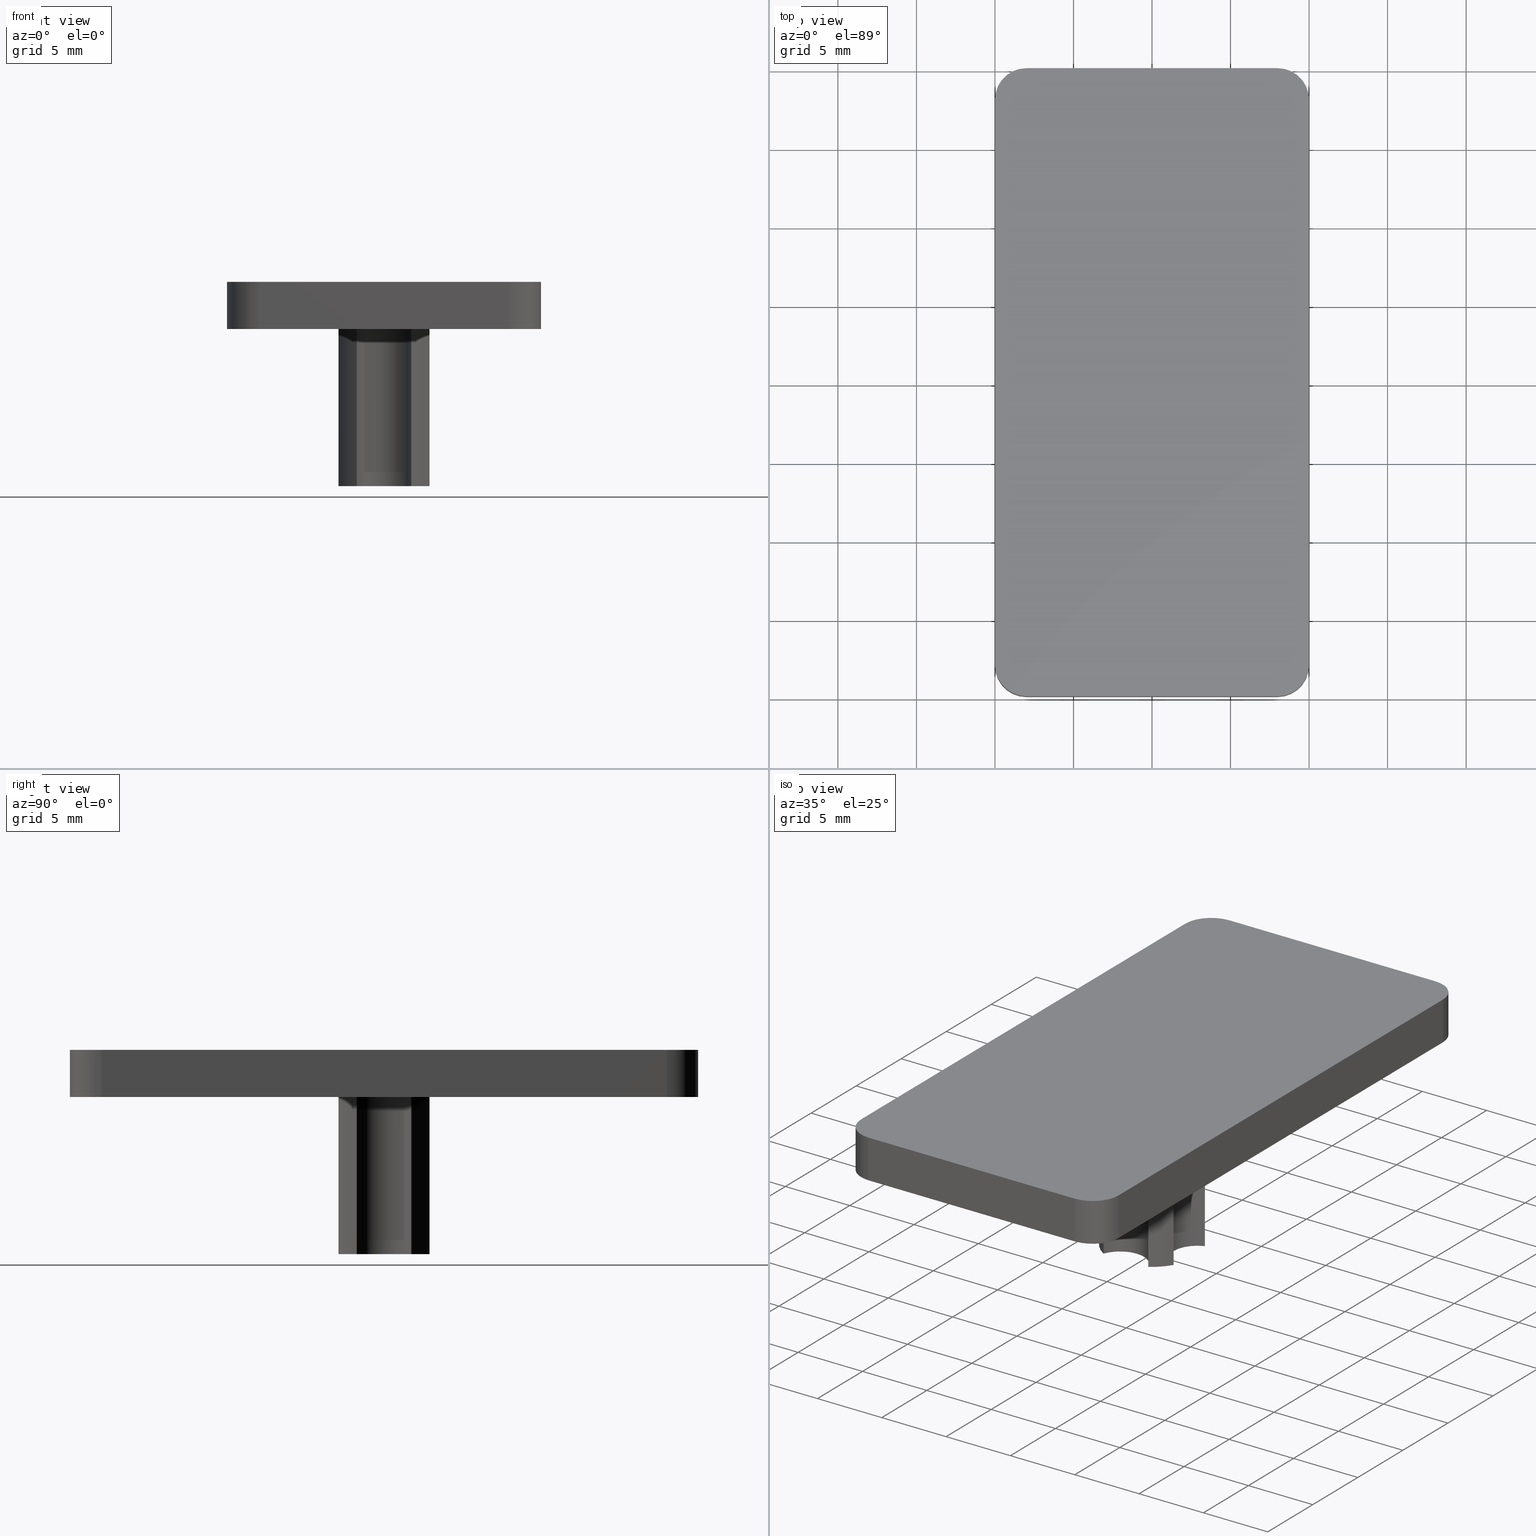
[diagram: canonical four-view strip — front | top / right | iso, engineering-drawing reading convention]
A machine part, canonical four-view strip (front | top / right | iso — engineering-drawing reading convention). The complete STEP part file that produces these views, byte-faithful:
ISO-10303-21;
HEADER;
/****************************************************************
 * Generated by software with PDE/Lib inside                    *
 * PDElib Version v4.4, created Mon 02/23/2004                  *
 * International Technegroup Inc. (www.iti-oh.com)              *
 ****************************************************************/
FILE_DESCRIPTION(('STEP AP203'),'2;1');
FILE_NAME('18.007.00.stp','2011-02-14T08:51:43',(''),(''),'2009.3.110','THINKDESIGN','');
FILE_SCHEMA(('CONFIG_CONTROL_DESIGN'));
ENDSEC;
DATA;
#2=CARTESIAN_POINT('',(6.462427046943312,3.552714E-015,-10.000000010000001));
#3=DIRECTION('',(-1.224647E-016,0.0,1.0));
#4=DIRECTION('',(-0.820773029339414,-0.571254439202884,-1.005157E-016));
#5=AXIS2_PLACEMENT_3D('',#2,#3,#4);
#6=CYLINDRICAL_SURFACE('',#5,1.850000000000001);
#7=CARTESIAN_POINT('',(8.312427046943311,3.552714E-015,-9.999999999999998));
#8=VERTEX_POINT('',#7);
#9=CARTESIAN_POINT('',(7.105000000000005,1.734819875376116,-10.0));
#10=VERTEX_POINT('',#9);
#11=CARTESIAN_POINT('',(6.462427046943309,3.552714E-015,-10.0));
#12=DIRECTION('',(-1.224647E-016,0.0,1.0));
#13=DIRECTION('',(0.0,1.0,0.0));
#14=AXIS2_PLACEMENT_3D('',#11,#12,#13);
#15=CIRCLE('',#14,1.850000000000001);
#16=EDGE_CURVE('',#8,#10,#15,.T.);
#17=ORIENTED_EDGE('',*,*,#16,.F.);
#18=CARTESIAN_POINT('',(8.312427046943309,3.552714E-015,1.017979E-015));
#19=VERTEX_POINT('',#18);
#20=CARTESIAN_POINT('',(8.312427046943311,3.552714E-015,-9.999999999999998));
#21=DIRECTION('',(0.0,0.0,1.0));
#22=VECTOR('',#21,10.0);
#23=LINE('',#20,#22);
#24=EDGE_CURVE('',#8,#19,#23,.T.);
#25=ORIENTED_EDGE('',*,*,#24,.T.);
#26=CARTESIAN_POINT('',(7.105000000000004,1.734819875376116,8.701116E-016));
#27=VERTEX_POINT('',#26);
#28=CARTESIAN_POINT('',(6.462427046943308,3.552714E-015,7.914191E-016));
#29=DIRECTION('',(-1.224647E-016,0.0,1.0));
#30=DIRECTION('',(0.0,1.0,0.0));
#31=AXIS2_PLACEMENT_3D('',#28,#29,#30);
#32=CIRCLE('',#31,1.850000000000001);
#33=EDGE_CURVE('',#19,#27,#32,.T.);
#34=ORIENTED_EDGE('',*,*,#33,.T.);
#35=CARTESIAN_POINT('',(7.105000000000005,1.734819875376116,-10.0));
#36=DIRECTION('',(0.0,0.0,1.0));
#37=VECTOR('',#36,10.0);
#38=LINE('',#35,#37);
#39=EDGE_CURVE('',#10,#27,#38,.T.);
#40=ORIENTED_EDGE('',*,*,#39,.F.);
#41=EDGE_LOOP('',(#17,#25,#34,#40));
#42=FACE_OUTER_BOUND('',#41,.T.);
#43=ADVANCED_FACE('',(#42),#6,.F.);
#44=CARTESIAN_POINT('',(17.999999999999993,-18.000000000000004,-9.999998E-009));
#45=DIRECTION('',(-1.224647E-016,0.0,1.0));
#46=DIRECTION('',(-0.707106781186547,0.707106781186548,-8.659561E-017));
#47=AXIS2_PLACEMENT_3D('',#44,#45,#46);
#48=CYLINDRICAL_SURFACE('',#47,2.000000000000001);
#49=CARTESIAN_POINT('',(19.999999999999986,-17.999999999999996,3.000000000000003));
#50=VERTEX_POINT('',#49);
#51=CARTESIAN_POINT('',(17.999999999999986,-19.999999999999996,3.000000000000002));
#52=VERTEX_POINT('',#51);
#53=CARTESIAN_POINT('',(17.999999999999986,-17.999999999999996,3.000000000000002));
#54=DIRECTION('',(1.224647E-016,0.0,-1.0));
#55=DIRECTION('',(-1.0,0.0,-1.224647E-016));
#56=AXIS2_PLACEMENT_3D('',#53,#54,#55);
#57=CIRCLE('',#56,2.000000000000001);
#58=EDGE_CURVE('',#50,#52,#57,.T.);
#59=ORIENTED_EDGE('',*,*,#58,.T.);
#60=CARTESIAN_POINT('',(17.999999999999986,-19.999999999999996,2.204364E-015));
#61=VERTEX_POINT('',#60);
#62=CARTESIAN_POINT('',(17.999999999999986,-19.999999999999996,2.204364E-015));
#63=DIRECTION('',(0.0,0.0,1.0));
#64=VECTOR('',#63,3.0);
#65=LINE('',#62,#64);
#66=EDGE_CURVE('',#61,#52,#65,.T.);
#67=ORIENTED_EDGE('',*,*,#66,.F.);
#68=CARTESIAN_POINT('',(19.999999999999986,-17.999999999999996,2.449294E-015));
#69=VERTEX_POINT('',#68);
#70=CARTESIAN_POINT('',(17.999999999999986,-17.999999999999996,2.204364E-015));
#71=DIRECTION('',(1.224647E-016,0.0,-1.0));
#72=DIRECTION('',(-1.0,0.0,-1.224647E-016));
#73=AXIS2_PLACEMENT_3D('',#70,#71,#72);
#74=CIRCLE('',#73,2.000000000000001);
#75=EDGE_CURVE('',#69,#61,#74,.T.);
#76=ORIENTED_EDGE('',*,*,#75,.F.);
#77=CARTESIAN_POINT('',(19.999999999999986,-17.999999999999996,2.449294E-015));
#78=DIRECTION('',(0.0,0.0,1.0));
#79=VECTOR('',#78,3.0);
#80=LINE('',#77,#79);
#81=EDGE_CURVE('',#69,#50,#80,.T.);
#82=ORIENTED_EDGE('',*,*,#81,.T.);
#83=EDGE_LOOP('',(#59,#67,#76,#82));
#84=FACE_OUTER_BOUND('',#83,.T.);
#85=ADVANCED_FACE('',(#84),#48,.T.);
#86=CARTESIAN_POINT('',(18.799999999999983,-19.999999999999996,3.150000000000002));
#87=DIRECTION('',(0.0,1.0,0.0));
#88=DIRECTION('',(0.0,0.0,-1.0));
#89=AXIS2_PLACEMENT_3D('',#86,#87,#88);
#90=PLANE('',#89);
#91=CARTESIAN_POINT('',(2.000000000000007,-19.999999999999996,3.000000000000000));
#92=VERTEX_POINT('',#91);
#93=CARTESIAN_POINT('',(17.999999999999986,-19.999999999999996,3.000000000000002));
#94=DIRECTION('',(-1.0,0.0,0.0));
#95=VECTOR('',#94,15.999999999999979);
#96=LINE('',#93,#95);
#97=EDGE_CURVE('',#52,#92,#96,.T.);
#98=ORIENTED_EDGE('',*,*,#97,.T.);
#99=CARTESIAN_POINT('',(2.000000000000007,-19.999999999999996,2.449294E-016));
#100=VERTEX_POINT('',#99);
#101=CARTESIAN_POINT('',(2.000000000000007,-19.999999999999996,2.449294E-016));
#102=DIRECTION('',(0.0,0.0,1.0));
#103=VECTOR('',#102,3.0);
#104=LINE('',#101,#103);
#105=EDGE_CURVE('',#100,#92,#104,.T.);
#106=ORIENTED_EDGE('',*,*,#105,.F.);
#107=CARTESIAN_POINT('',(17.999999999999986,-19.999999999999996,2.204364E-015));
#108=DIRECTION('',(-1.0,0.0,0.0));
#109=VECTOR('',#108,15.999999999999979);
#110=LINE('',#107,#109);
#111=EDGE_CURVE('',#61,#100,#110,.T.);
#112=ORIENTED_EDGE('',*,*,#111,.F.);
#113=ORIENTED_EDGE('',*,*,#66,.T.);
#114=EDGE_LOOP('',(#98,#106,#112,#113));
#115=FACE_OUTER_BOUND('',#114,.T.);
#116=ADVANCED_FACE('',(#115),#90,.F.);
#117=CARTESIAN_POINT('',(2.000000000000007,-17.999999999999996,-1.000000E-008));
#118=DIRECTION('',(-1.224647E-016,0.0,1.0));
#119=DIRECTION('',(1.0,0.0,1.224647E-016));
#120=AXIS2_PLACEMENT_3D('',#117,#118,#119);
#121=CYLINDRICAL_SURFACE('',#120,2.000000000000001);
#122=CARTESIAN_POINT('',(-3.673940E-016,-17.999999999999996,3.0));
#123=VERTEX_POINT('',#122);
#124=CARTESIAN_POINT('',(2.000000000000007,-17.999999999999996,3.000000000000000));
#125=DIRECTION('',(1.224647E-016,0.0,-1.0));
#126=DIRECTION('',(1.0,0.0,1.224647E-016));
#127=AXIS2_PLACEMENT_3D('',#124,#125,#126);
#128=CIRCLE('',#127,2.000000000000001);
#129=EDGE_CURVE('',#92,#123,#128,.T.);
#130=ORIENTED_EDGE('',*,*,#129,.T.);
#131=CARTESIAN_POINT('',(0.0,-17.999999999999996,0.0));
#132=VERTEX_POINT('',#131);
#133=CARTESIAN_POINT('',(0.0,-17.999999999999996,0.0));
#134=DIRECTION('',(0.0,0.0,1.0));
#135=VECTOR('',#134,3.0);
#136=LINE('',#133,#135);
#137=EDGE_CURVE('',#132,#123,#136,.T.);
#138=ORIENTED_EDGE('',*,*,#137,.F.);
#139=CARTESIAN_POINT('',(2.000000000000007,-17.999999999999996,2.449294E-016));
#140=DIRECTION('',(1.224647E-016,0.0,-1.0));
#141=DIRECTION('',(1.0,0.0,1.224647E-016));
#142=AXIS2_PLACEMENT_3D('',#139,#140,#141);
#143=CIRCLE('',#142,2.000000000000001);
#144=EDGE_CURVE('',#100,#132,#143,.T.);
#145=ORIENTED_EDGE('',*,*,#144,.F.);
#146=ORIENTED_EDGE('',*,*,#105,.T.);
#147=EDGE_LOOP('',(#130,#138,#145,#146));
#148=FACE_OUTER_BOUND('',#147,.T.);
#149=ADVANCED_FACE('',(#148),#121,.T.);
#150=CARTESIAN_POINT('',(-3.857637E-016,-19.799999999999997,3.150000000000000));
#151=DIRECTION('',(1.0,0.0,0.0));
#152=DIRECTION('',(0.0,0.0,-1.0));
#153=AXIS2_PLACEMENT_3D('',#150,#151,#152);
#154=PLANE('',#153);
#155=CARTESIAN_POINT('',(-3.673940E-016,17.999999999999993,3.0));
#156=VERTEX_POINT('',#155);
#157=CARTESIAN_POINT('',(-3.673940E-016,-17.999999999999996,3.0));
#158=DIRECTION('',(0.0,1.0,0.0));
#159=VECTOR('',#158,35.999999999999993);
#160=LINE('',#157,#159);
#161=EDGE_CURVE('',#123,#156,#160,.T.);
#162=ORIENTED_EDGE('',*,*,#161,.T.);
#163=CARTESIAN_POINT('',(0.0,17.999999999999993,0.0));
#164=VERTEX_POINT('',#163);
#165=CARTESIAN_POINT('',(0.0,17.999999999999993,0.0));
#166=DIRECTION('',(0.0,0.0,1.0));
#167=VECTOR('',#166,3.0);
#168=LINE('',#165,#167);
#169=EDGE_CURVE('',#164,#156,#168,.T.);
#170=ORIENTED_EDGE('',*,*,#169,.F.);
#171=CARTESIAN_POINT('',(0.0,-17.999999999999996,0.0));
#172=DIRECTION('',(0.0,1.0,0.0));
#173=VECTOR('',#172,35.999999999999993);
#174=LINE('',#171,#173);
#175=EDGE_CURVE('',#132,#164,#174,.T.);
#176=ORIENTED_EDGE('',*,*,#175,.F.);
#177=ORIENTED_EDGE('',*,*,#137,.T.);
#178=EDGE_LOOP('',(#162,#170,#176,#177));
#179=FACE_OUTER_BOUND('',#178,.T.);
#180=ADVANCED_FACE('',(#179),#154,.F.);
#181=CARTESIAN_POINT('',(2.000000000000007,17.999999999999993,-1.000000E-008));
#182=DIRECTION('',(-1.224647E-016,0.0,1.0));
#183=DIRECTION('',(1.0,0.0,1.224647E-016));
#184=AXIS2_PLACEMENT_3D('',#181,#182,#183);
#185=CYLINDRICAL_SURFACE('',#184,2.000000000000001);
#186=CARTESIAN_POINT('',(2.000000000000007,19.999999999999996,3.000000000000000));
#187=VERTEX_POINT('',#186);
#188=CARTESIAN_POINT('',(2.000000000000007,17.999999999999993,3.000000000000000));
#189=DIRECTION('',(1.224647E-016,0.0,-1.0));
#190=DIRECTION('',(1.0,0.0,1.224647E-016));
#191=AXIS2_PLACEMENT_3D('',#188,#189,#190);
#192=CIRCLE('',#191,2.000000000000001);
#193=EDGE_CURVE('',#156,#187,#192,.T.);
#194=ORIENTED_EDGE('',*,*,#193,.T.);
#195=CARTESIAN_POINT('',(2.000000000000007,19.999999999999996,2.449294E-016));
#196=VERTEX_POINT('',#195);
#197=CARTESIAN_POINT('',(2.000000000000007,19.999999999999996,2.449294E-016));
#198=DIRECTION('',(0.0,0.0,1.0));
#199=VECTOR('',#198,3.0);
#200=LINE('',#197,#199);
#201=EDGE_CURVE('',#196,#187,#200,.T.);
#202=ORIENTED_EDGE('',*,*,#201,.F.);
#203=CARTESIAN_POINT('',(2.000000000000007,17.999999999999993,2.449294E-016));
#204=DIRECTION('',(1.224647E-016,0.0,-1.0));
#205=DIRECTION('',(1.0,0.0,1.224647E-016));
#206=AXIS2_PLACEMENT_3D('',#203,#204,#205);
#207=CIRCLE('',#206,2.000000000000001);
#208=EDGE_CURVE('',#164,#196,#207,.T.);
#209=ORIENTED_EDGE('',*,*,#208,.F.);
#210=ORIENTED_EDGE('',*,*,#169,.T.);
#211=EDGE_LOOP('',(#194,#202,#209,#210));
#212=FACE_OUTER_BOUND('',#211,.T.);
#213=ADVANCED_FACE('',(#212),#185,.T.);
#214=CARTESIAN_POINT('',(18.800000000000004,19.999999999999996,-0.149999999999998));
#215=DIRECTION('',(0.0,-1.0,0.0));
#216=DIRECTION('',(0.0,0.0,1.0));
#217=AXIS2_PLACEMENT_3D('',#214,#215,#216);
#218=PLANE('',#217);
#219=CARTESIAN_POINT('',(18.000000000000007,19.999999999999996,3.000000000000002));
#220=VERTEX_POINT('',#219);
#221=CARTESIAN_POINT('',(2.000000000000007,19.999999999999996,3.000000000000000));
#222=DIRECTION('',(1.0,0.0,0.0));
#223=VECTOR('',#222,16.0);
#224=LINE('',#221,#223);
#225=EDGE_CURVE('',#187,#220,#224,.T.);
#226=ORIENTED_EDGE('',*,*,#225,.T.);
#227=CARTESIAN_POINT('',(18.000000000000007,19.999999999999996,2.204364E-015));
#228=VERTEX_POINT('',#227);
#229=CARTESIAN_POINT('',(18.000000000000007,19.999999999999996,2.204364E-015));
#230=DIRECTION('',(0.0,0.0,1.0));
#231=VECTOR('',#230,3.0);
#232=LINE('',#229,#231);
#233=EDGE_CURVE('',#228,#220,#232,.T.);
#234=ORIENTED_EDGE('',*,*,#233,.F.);
#235=CARTESIAN_POINT('',(2.000000000000007,19.999999999999996,2.449294E-016));
#236=DIRECTION('',(1.0,0.0,0.0));
#237=VECTOR('',#236,16.0);
#238=LINE('',#235,#237);
#239=EDGE_CURVE('',#196,#228,#238,.T.);
#240=ORIENTED_EDGE('',*,*,#239,.F.);
#241=ORIENTED_EDGE('',*,*,#201,.T.);
#242=EDGE_LOOP('',(#226,#234,#240,#241));
#243=FACE_OUTER_BOUND('',#242,.T.);
#244=ADVANCED_FACE('',(#243),#218,.F.);
#245=CARTESIAN_POINT('',(18.000000000000007,17.999999999999996,-9.999998E-009));
#246=DIRECTION('',(-1.224647E-016,0.0,1.0));
#247=DIRECTION('',(-0.707106781186547,-0.707106781186548,-8.659561E-017));
#248=AXIS2_PLACEMENT_3D('',#245,#246,#247);
#249=CYLINDRICAL_SURFACE('',#248,2.000000000000001);
#250=CARTESIAN_POINT('',(20.000000000000007,17.999999999999993,3.000000000000003));
#251=VERTEX_POINT('',#250);
#252=CARTESIAN_POINT('',(18.000000000000007,17.999999999999993,3.000000000000002));
#253=DIRECTION('',(1.224647E-016,0.0,-1.0));
#254=DIRECTION('',(-1.0,0.0,-1.224647E-016));
#255=AXIS2_PLACEMENT_3D('',#252,#253,#254);
#256=CIRCLE('',#255,2.000000000000001);
#257=EDGE_CURVE('',#220,#251,#256,.T.);
#258=ORIENTED_EDGE('',*,*,#257,.T.);
#259=CARTESIAN_POINT('',(20.000000000000007,17.999999999999993,2.449294E-015));
#260=VERTEX_POINT('',#259);
#261=CARTESIAN_POINT('',(20.000000000000007,17.999999999999993,2.449294E-015));
#262=DIRECTION('',(0.0,0.0,1.0));
#263=VECTOR('',#262,3.0);
#264=LINE('',#261,#263);
#265=EDGE_CURVE('',#260,#251,#264,.T.);
#266=ORIENTED_EDGE('',*,*,#265,.F.);
#267=CARTESIAN_POINT('',(18.000000000000007,17.999999999999993,2.204364E-015));
#268=DIRECTION('',(1.224647E-016,0.0,-1.0));
#269=DIRECTION('',(-1.0,0.0,-1.224647E-016));
#270=AXIS2_PLACEMENT_3D('',#267,#268,#269);
#271=CIRCLE('',#270,2.000000000000001);
#272=EDGE_CURVE('',#228,#260,#271,.T.);
#273=ORIENTED_EDGE('',*,*,#272,.F.);
#274=ORIENTED_EDGE('',*,*,#233,.T.);
#275=EDGE_LOOP('',(#258,#266,#273,#274));
#276=FACE_OUTER_BOUND('',#275,.T.);
#277=ADVANCED_FACE('',(#276),#249,.T.);
#278=CARTESIAN_POINT('',(20.000000000000007,-19.799999999999994,3.150000000000003));
#279=DIRECTION('',(-1.0,0.0,0.0));
#280=DIRECTION('',(0.0,1.0,0.0));
#281=AXIS2_PLACEMENT_3D('',#278,#279,#280);
#282=PLANE('',#281);
#283=CARTESIAN_POINT('',(20.000000000000007,17.999999999999993,3.000000000000003));
#284=DIRECTION('',(0.0,-1.0,0.0));
#285=VECTOR('',#284,35.999999999999993);
#286=LINE('',#283,#285);
#287=EDGE_CURVE('',#251,#50,#286,.T.);
#288=ORIENTED_EDGE('',*,*,#287,.T.);
#289=ORIENTED_EDGE('',*,*,#81,.F.);
#290=CARTESIAN_POINT('',(20.000000000000007,17.999999999999993,2.449294E-015));
#291=DIRECTION('',(0.0,-1.0,0.0));
#292=VECTOR('',#291,35.999999999999993);
#293=LINE('',#290,#292);
#294=EDGE_CURVE('',#260,#69,#293,.T.);
#295=ORIENTED_EDGE('',*,*,#294,.F.);
#296=ORIENTED_EDGE('',*,*,#265,.T.);
#297=EDGE_LOOP('',(#288,#289,#295,#296));
#298=FACE_OUTER_BOUND('',#297,.T.);
#299=ADVANCED_FACE('',(#298),#282,.F.);
#300=CARTESIAN_POINT('',(21.000000000000007,-21.999999999999996,2.571758E-015));
#301=DIRECTION('',(0.0,0.0,-1.0));
#302=DIRECTION('',(-1.0,0.0,0.0));
#303=AXIS2_PLACEMENT_3D('',#300,#301,#302);
#304=PLANE('',#303);
#305=ORIENTED_EDGE('',*,*,#75,.T.);
#306=ORIENTED_EDGE('',*,*,#111,.T.);
#307=ORIENTED_EDGE('',*,*,#144,.T.);
#308=ORIENTED_EDGE('',*,*,#175,.T.);
#309=ORIENTED_EDGE('',*,*,#208,.T.);
#310=ORIENTED_EDGE('',*,*,#239,.T.);
#311=ORIENTED_EDGE('',*,*,#272,.T.);
#312=ORIENTED_EDGE('',*,*,#294,.T.);
#313=EDGE_LOOP('',(#305,#306,#307,#308,#309,#310,#311,#312));
#314=FACE_OUTER_BOUND('',#313,.T.);
#315=CARTESIAN_POINT('',(8.265180124623885,2.895000000000005,1.012193E-015));
#316=VERTEX_POINT('',#315);
#317=CARTESIAN_POINT('',(10.000000000000004,3.552714E-015,1.224647E-015));
#318=DIRECTION('',(1.224647E-016,0.0,-1.0));
#319=DIRECTION('',(0.0,1.0,0.0));
#320=AXIS2_PLACEMENT_3D('',#317,#318,#319);
#321=CIRCLE('',#320,3.374999999999998);
#322=EDGE_CURVE('',#27,#316,#321,.T.);
#323=ORIENTED_EDGE('',*,*,#322,.F.);
#324=ORIENTED_EDGE('',*,*,#33,.F.);
#325=CARTESIAN_POINT('',(7.105000000000004,-1.734819875376115,8.701116E-016));
#326=VERTEX_POINT('',#325);
#327=CARTESIAN_POINT('',(6.462427046943308,3.552714E-015,7.914191E-016));
#328=DIRECTION('',(-1.224647E-016,0.0,1.0));
#329=DIRECTION('',(0.0,1.0,0.0));
#330=AXIS2_PLACEMENT_3D('',#327,#328,#329);
#331=CIRCLE('',#330,1.850000000000001);
#332=EDGE_CURVE('',#326,#19,#331,.T.);
#333=ORIENTED_EDGE('',*,*,#332,.F.);
#334=CARTESIAN_POINT('',(8.265180124623885,-2.894999999999994,1.012193E-015));
#335=VERTEX_POINT('',#334);
#336=CARTESIAN_POINT('',(10.000000000000004,3.552714E-015,1.224647E-015));
#337=DIRECTION('',(1.224647E-016,0.0,-1.0));
#338=DIRECTION('',(0.0,1.0,0.0));
#339=AXIS2_PLACEMENT_3D('',#336,#337,#338);
#340=CIRCLE('',#339,3.374999999999999);
#341=EDGE_CURVE('',#335,#326,#340,.T.);
#342=ORIENTED_EDGE('',*,*,#341,.F.);
#343=CARTESIAN_POINT('',(11.734819875376118,-2.895000000000000,1.437101E-015));
#344=VERTEX_POINT('',#343);
#345=CARTESIAN_POINT('',(10.000000000000004,-3.537572953056708,1.224647E-015));
#346=DIRECTION('',(-1.224647E-016,0.0,1.0));
#347=DIRECTION('',(0.0,-1.0,0.0));
#348=AXIS2_PLACEMENT_3D('',#345,#346,#347);
#349=CIRCLE('',#348,1.850000000000004);
#350=EDGE_CURVE('',#344,#335,#349,.T.);
#351=ORIENTED_EDGE('',*,*,#350,.F.);
#352=CARTESIAN_POINT('',(12.895000009413444,-1.734819859667306,1.579182E-015));
#353=VERTEX_POINT('',#352);
#354=CARTESIAN_POINT('',(10.000000000000004,3.552714E-015,1.224647E-015));
#355=DIRECTION('',(1.224647E-016,0.0,-1.0));
#356=DIRECTION('',(0.0,1.0,0.0));
#357=AXIS2_PLACEMENT_3D('',#354,#355,#356);
#358=CIRCLE('',#357,3.375000000000001);
#359=EDGE_CURVE('',#353,#344,#358,.T.);
#360=ORIENTED_EDGE('',*,*,#359,.F.);
#361=CARTESIAN_POINT('',(12.895000009413444,1.734819859667312,1.579182E-015));
#362=VERTEX_POINT('',#361);
#363=CARTESIAN_POINT('',(13.537573004880823,3.552714E-015,1.657875E-015));
#364=DIRECTION('',(-1.224647E-016,0.0,1.0));
#365=DIRECTION('',(0.0,1.0,0.0));
#366=AXIS2_PLACEMENT_3D('',#363,#364,#365);
#367=CIRCLE('',#366,1.850000000000003);
#368=EDGE_CURVE('',#362,#353,#367,.T.);
#369=ORIENTED_EDGE('',*,*,#368,.F.);
#370=CARTESIAN_POINT('',(11.734819875376118,2.895000000000001,1.437101E-015));
#371=VERTEX_POINT('',#370);
#372=CARTESIAN_POINT('',(10.000000000000004,3.552714E-015,1.224647E-015));
#373=DIRECTION('',(1.224647E-016,0.0,-1.0));
#374=DIRECTION('',(0.0,1.0,0.0));
#375=AXIS2_PLACEMENT_3D('',#372,#373,#374);
#376=CIRCLE('',#375,3.374999999999999);
#377=EDGE_CURVE('',#371,#362,#376,.T.);
#378=ORIENTED_EDGE('',*,*,#377,.F.);
#379=CARTESIAN_POINT('',(10.000000000000004,3.537572953056701,1.224647E-015));
#380=DIRECTION('',(-1.224647E-016,0.0,1.0));
#381=DIRECTION('',(0.0,1.0,0.0));
#382=AXIS2_PLACEMENT_3D('',#379,#380,#381);
#383=CIRCLE('',#382,1.850000000000000);
#384=EDGE_CURVE('',#316,#371,#383,.T.);
#385=ORIENTED_EDGE('',*,*,#384,.F.);
#386=EDGE_LOOP('',(#323,#324,#333,#342,#351,#360,#369,#378,#385));
#387=FACE_BOUND('',#386,.T.);
#388=ADVANCED_FACE('',(#314,#387),#304,.T.);
#389=CARTESIAN_POINT('',(21.000000000000007,-21.999999999999996,3.000000000000003));
#390=DIRECTION('',(0.0,0.0,-1.0));
#391=DIRECTION('',(-1.0,0.0,0.0));
#392=AXIS2_PLACEMENT_3D('',#389,#390,#391);
#393=PLANE('',#392);
#394=ORIENTED_EDGE('',*,*,#58,.F.);
#395=ORIENTED_EDGE('',*,*,#287,.F.);
#396=ORIENTED_EDGE('',*,*,#257,.F.);
#397=ORIENTED_EDGE('',*,*,#225,.F.);
#398=ORIENTED_EDGE('',*,*,#193,.F.);
#399=ORIENTED_EDGE('',*,*,#161,.F.);
#400=ORIENTED_EDGE('',*,*,#129,.F.);
#401=ORIENTED_EDGE('',*,*,#97,.F.);
#402=EDGE_LOOP('',(#394,#395,#396,#397,#398,#399,#400,#401));
#403=FACE_OUTER_BOUND('',#402,.T.);
#404=ADVANCED_FACE('',(#403),#393,.F.);
#405=CARTESIAN_POINT('',(10.000000000000005,3.552714E-015,-10.000000009999997));
#406=DIRECTION('',(-1.224647E-016,0.0,1.0));
#407=DIRECTION('',(1.0,0.0,1.224647E-016));
#408=AXIS2_PLACEMENT_3D('',#405,#406,#407);
#409=CYLINDRICAL_SURFACE('',#408,3.375000000000000);
#410=ORIENTED_EDGE('',*,*,#322,.T.);
#411=CARTESIAN_POINT('',(8.265180124623887,2.895000000000005,-9.999999999999998));
#412=VERTEX_POINT('',#411);
#413=CARTESIAN_POINT('',(8.265180124623887,2.895000000000005,-9.999999999999998));
#414=DIRECTION('',(0.0,0.0,1.0));
#415=VECTOR('',#414,10.0);
#416=LINE('',#413,#415);
#417=EDGE_CURVE('',#412,#316,#416,.T.);
#418=ORIENTED_EDGE('',*,*,#417,.F.);
#419=CARTESIAN_POINT('',(10.000000000000005,3.552714E-015,-9.999999999999998));
#420=DIRECTION('',(1.224647E-016,0.0,-1.0));
#421=DIRECTION('',(0.0,1.0,0.0));
#422=AXIS2_PLACEMENT_3D('',#419,#420,#421);
#423=CIRCLE('',#422,3.374999999999998);
#424=EDGE_CURVE('',#10,#412,#423,.T.);
#425=ORIENTED_EDGE('',*,*,#424,.F.);
#426=ORIENTED_EDGE('',*,*,#39,.T.);
#427=EDGE_LOOP('',(#410,#418,#425,#426));
#428=FACE_OUTER_BOUND('',#427,.T.);
#429=ADVANCED_FACE('',(#428),#409,.T.);
#430=CARTESIAN_POINT('',(10.000000000000005,3.537572953056701,-10.000000009999997));
#431=DIRECTION('',(-1.224647E-016,0.0,1.0));
#432=DIRECTION('',(1.0,0.0,1.224647E-016));
#433=AXIS2_PLACEMENT_3D('',#430,#431,#432);
#434=CYLINDRICAL_SURFACE('',#433,1.850000000000001);
#435=ORIENTED_EDGE('',*,*,#384,.T.);
#436=CARTESIAN_POINT('',(11.734819875376120,2.895000000000001,-9.999999999999998));
#437=VERTEX_POINT('',#436);
#438=CARTESIAN_POINT('',(11.734819875376120,2.895000000000001,-9.999999999999998));
#439=DIRECTION('',(0.0,0.0,1.0));
#440=VECTOR('',#439,10.0);
#441=LINE('',#438,#440);
#442=EDGE_CURVE('',#437,#371,#441,.T.);
#443=ORIENTED_EDGE('',*,*,#442,.F.);
#444=CARTESIAN_POINT('',(10.000000000000005,3.537572953056701,-9.999999999999998));
#445=DIRECTION('',(-1.224647E-016,0.0,1.0));
#446=DIRECTION('',(0.0,1.0,0.0));
#447=AXIS2_PLACEMENT_3D('',#444,#445,#446);
#448=CIRCLE('',#447,1.850000000000000);
#449=EDGE_CURVE('',#412,#437,#448,.T.);
#450=ORIENTED_EDGE('',*,*,#449,.F.);
#451=ORIENTED_EDGE('',*,*,#417,.T.);
#452=EDGE_LOOP('',(#435,#443,#450,#451));
#453=FACE_OUTER_BOUND('',#452,.T.);
#454=ADVANCED_FACE('',(#453),#434,.F.);
#455=CARTESIAN_POINT('',(10.000000000000005,3.552714E-015,-10.000000009999997));
#456=DIRECTION('',(-1.224647E-016,0.0,1.0));
#457=DIRECTION('',(1.0,0.0,1.224647E-016));
#458=AXIS2_PLACEMENT_3D('',#455,#456,#457);
#459=CYLINDRICAL_SURFACE('',#458,3.375000000000000);
#460=ORIENTED_EDGE('',*,*,#377,.T.);
#461=CARTESIAN_POINT('',(12.895000009413446,1.734819859667312,-9.999999999999998));
#462=VERTEX_POINT('',#461);
#463=CARTESIAN_POINT('',(12.895000009413446,1.734819859667312,-9.999999999999998));
#464=DIRECTION('',(0.0,0.0,1.0));
#465=VECTOR('',#464,10.0);
#466=LINE('',#463,#465);
#467=EDGE_CURVE('',#462,#362,#466,.T.);
#468=ORIENTED_EDGE('',*,*,#467,.F.);
#469=CARTESIAN_POINT('',(10.000000000000005,3.552714E-015,-9.999999999999998));
#470=DIRECTION('',(1.224647E-016,0.0,-1.0));
#471=DIRECTION('',(0.0,1.0,0.0));
#472=AXIS2_PLACEMENT_3D('',#469,#470,#471);
#473=CIRCLE('',#472,3.374999999999999);
#474=EDGE_CURVE('',#437,#462,#473,.T.);
#475=ORIENTED_EDGE('',*,*,#474,.F.);
#476=ORIENTED_EDGE('',*,*,#442,.T.);
#477=EDGE_LOOP('',(#460,#468,#475,#476));
#478=FACE_OUTER_BOUND('',#477,.T.);
#479=ADVANCED_FACE('',(#478),#459,.T.);
#480=CARTESIAN_POINT('',(13.537573004880825,3.552714E-015,-10.000000009999997));
#481=DIRECTION('',(-1.224647E-016,0.0,1.0));
#482=DIRECTION('',(1.0,0.0,1.224647E-016));
#483=AXIS2_PLACEMENT_3D('',#480,#481,#482);
#484=CYLINDRICAL_SURFACE('',#483,1.850000000000004);
#485=ORIENTED_EDGE('',*,*,#368,.T.);
#486=CARTESIAN_POINT('',(12.895000009413446,-1.734819859667306,-9.999999999999998));
#487=VERTEX_POINT('',#486);
#488=CARTESIAN_POINT('',(12.895000009413446,-1.734819859667306,-9.999999999999998));
#489=DIRECTION('',(0.0,0.0,1.0));
#490=VECTOR('',#489,10.0);
#491=LINE('',#488,#490);
#492=EDGE_CURVE('',#487,#353,#491,.T.);
#493=ORIENTED_EDGE('',*,*,#492,.F.);
#494=CARTESIAN_POINT('',(13.537573004880825,3.552714E-015,-9.999999999999998));
#495=DIRECTION('',(-1.224647E-016,0.0,1.0));
#496=DIRECTION('',(0.0,1.0,0.0));
#497=AXIS2_PLACEMENT_3D('',#494,#495,#496);
#498=CIRCLE('',#497,1.850000000000003);
#499=EDGE_CURVE('',#462,#487,#498,.T.);
#500=ORIENTED_EDGE('',*,*,#499,.F.);
#501=ORIENTED_EDGE('',*,*,#467,.T.);
#502=EDGE_LOOP('',(#485,#493,#500,#501));
#503=FACE_OUTER_BOUND('',#502,.T.);
#504=ADVANCED_FACE('',(#503),#484,.F.);
#505=CARTESIAN_POINT('',(10.000000000000005,3.552714E-015,-10.000000009999997));
#506=DIRECTION('',(-1.224647E-016,0.0,1.0));
#507=DIRECTION('',(1.0,0.0,1.224647E-016));
#508=AXIS2_PLACEMENT_3D('',#505,#506,#507);
#509=CYLINDRICAL_SURFACE('',#508,3.375000000000000);
#510=ORIENTED_EDGE('',*,*,#359,.T.);
#511=CARTESIAN_POINT('',(11.734819875376120,-2.895000000000000,-9.999999999999998));
#512=VERTEX_POINT('',#511);
#513=CARTESIAN_POINT('',(11.734819875376120,-2.895000000000000,-9.999999999999998));
#514=DIRECTION('',(0.0,0.0,1.0));
#515=VECTOR('',#514,10.0);
#516=LINE('',#513,#515);
#517=EDGE_CURVE('',#512,#344,#516,.T.);
#518=ORIENTED_EDGE('',*,*,#517,.F.);
#519=CARTESIAN_POINT('',(10.000000000000005,3.552714E-015,-9.999999999999998));
#520=DIRECTION('',(1.224647E-016,0.0,-1.0));
#521=DIRECTION('',(0.0,1.0,0.0));
#522=AXIS2_PLACEMENT_3D('',#519,#520,#521);
#523=CIRCLE('',#522,3.375000000000001);
#524=EDGE_CURVE('',#487,#512,#523,.T.);
#525=ORIENTED_EDGE('',*,*,#524,.F.);
#526=ORIENTED_EDGE('',*,*,#492,.T.);
#527=EDGE_LOOP('',(#510,#518,#525,#526));
#528=FACE_OUTER_BOUND('',#527,.T.);
#529=ADVANCED_FACE('',(#528),#509,.T.);
#530=CARTESIAN_POINT('',(10.000000000000005,-3.537572953056708,-10.000000009999997));
#531=DIRECTION('',(-1.224647E-016,0.0,1.0));
#532=DIRECTION('',(1.0,0.0,1.224647E-016));
#533=AXIS2_PLACEMENT_3D('',#530,#531,#532);
#534=CYLINDRICAL_SURFACE('',#533,1.850000000000004);
#535=ORIENTED_EDGE('',*,*,#350,.T.);
#536=CARTESIAN_POINT('',(8.265180124623887,-2.894999999999994,-9.999999999999998));
#537=VERTEX_POINT('',#536);
#538=CARTESIAN_POINT('',(8.265180124623887,-2.894999999999994,-9.999999999999998));
#539=DIRECTION('',(0.0,0.0,1.0));
#540=VECTOR('',#539,10.0);
#541=LINE('',#538,#540);
#542=EDGE_CURVE('',#537,#335,#541,.T.);
#543=ORIENTED_EDGE('',*,*,#542,.F.);
#544=CARTESIAN_POINT('',(10.000000000000005,-3.537572953056708,-9.999999999999998));
#545=DIRECTION('',(-1.224647E-016,0.0,1.0));
#546=DIRECTION('',(0.0,-1.0,0.0));
#547=AXIS2_PLACEMENT_3D('',#544,#545,#546);
#548=CIRCLE('',#547,1.850000000000004);
#549=EDGE_CURVE('',#512,#537,#548,.T.);
#550=ORIENTED_EDGE('',*,*,#549,.F.);
#551=ORIENTED_EDGE('',*,*,#517,.T.);
#552=EDGE_LOOP('',(#535,#543,#550,#551));
#553=FACE_OUTER_BOUND('',#552,.T.);
#554=ADVANCED_FACE('',(#553),#534,.F.);
#555=CARTESIAN_POINT('',(10.000000000000005,3.552714E-015,-10.000000009999997));
#556=DIRECTION('',(-1.224647E-016,0.0,1.0));
#557=DIRECTION('',(1.0,0.0,1.224647E-016));
#558=AXIS2_PLACEMENT_3D('',#555,#556,#557);
#559=CYLINDRICAL_SURFACE('',#558,3.375000000000000);
#560=ORIENTED_EDGE('',*,*,#341,.T.);
#561=CARTESIAN_POINT('',(7.105000000000005,-1.734819875376115,-10.0));
#562=VERTEX_POINT('',#561);
#563=CARTESIAN_POINT('',(7.105000000000005,-1.734819875376115,-10.0));
#564=DIRECTION('',(0.0,0.0,1.0));
#565=VECTOR('',#564,10.0);
#566=LINE('',#563,#565);
#567=EDGE_CURVE('',#562,#326,#566,.T.);
#568=ORIENTED_EDGE('',*,*,#567,.F.);
#569=CARTESIAN_POINT('',(10.000000000000005,3.552714E-015,-9.999999999999998));
#570=DIRECTION('',(1.224647E-016,0.0,-1.0));
#571=DIRECTION('',(0.0,1.0,0.0));
#572=AXIS2_PLACEMENT_3D('',#569,#570,#571);
#573=CIRCLE('',#572,3.374999999999999);
#574=EDGE_CURVE('',#537,#562,#573,.T.);
#575=ORIENTED_EDGE('',*,*,#574,.F.);
#576=ORIENTED_EDGE('',*,*,#542,.T.);
#577=EDGE_LOOP('',(#560,#568,#575,#576));
#578=FACE_OUTER_BOUND('',#577,.T.);
#579=ADVANCED_FACE('',(#578),#559,.T.);
#580=CARTESIAN_POINT('',(6.462427046943305,3.552714E-015,-10.000000010000001));
#581=DIRECTION('',(-1.224647E-016,0.0,1.0));
#582=DIRECTION('',(-0.820773029339414,0.571254439202884,-1.005157E-016));
#583=AXIS2_PLACEMENT_3D('',#580,#581,#582);
#584=CYLINDRICAL_SURFACE('',#583,1.850000000000001);
#585=ORIENTED_EDGE('',*,*,#24,.F.);
#586=CARTESIAN_POINT('',(6.462427046943309,3.552714E-015,-10.0));
#587=DIRECTION('',(-1.224647E-016,0.0,1.0));
#588=DIRECTION('',(0.0,1.0,0.0));
#589=AXIS2_PLACEMENT_3D('',#586,#587,#588);
#590=CIRCLE('',#589,1.850000000000001);
#591=EDGE_CURVE('',#562,#8,#590,.T.);
#592=ORIENTED_EDGE('',*,*,#591,.F.);
#593=ORIENTED_EDGE('',*,*,#567,.T.);
#594=ORIENTED_EDGE('',*,*,#332,.T.);
#595=EDGE_LOOP('',(#585,#592,#593,#594));
#596=FACE_OUTER_BOUND('',#595,.T.);
#597=ADVANCED_FACE('',(#596),#584,.F.);
#598=CARTESIAN_POINT('',(13.184500009884127,-3.184500000000000,-9.999999999999998));
#599=DIRECTION('',(0.0,0.0,-1.0));
#600=DIRECTION('',(-1.0,0.0,0.0));
#601=AXIS2_PLACEMENT_3D('',#598,#599,#600);
#602=PLANE('',#601);
#603=ORIENTED_EDGE('',*,*,#424,.T.);
#604=ORIENTED_EDGE('',*,*,#449,.T.);
#605=ORIENTED_EDGE('',*,*,#474,.T.);
#606=ORIENTED_EDGE('',*,*,#499,.T.);
#607=ORIENTED_EDGE('',*,*,#524,.T.);
#608=ORIENTED_EDGE('',*,*,#549,.T.);
#609=ORIENTED_EDGE('',*,*,#574,.T.);
#610=ORIENTED_EDGE('',*,*,#591,.T.);
#611=ORIENTED_EDGE('',*,*,#16,.T.);
#612=EDGE_LOOP('',(#603,#604,#605,#606,#607,#608,#609,#610,#611));
#613=FACE_OUTER_BOUND('',#612,.T.);
#614=ADVANCED_FACE('',(#613),#602,.T.);
#615=CLOSED_SHELL('',(#43,#85,#116,#149,#180,#213,#244,#277,#299,#388,#404,#429,#454,#479,#504,#529,#554,#579,#597,#614));
#616=MANIFOLD_SOLID_BREP('Importato1',#615);
#622=(NAMED_UNIT(*)PLANE_ANGLE_UNIT()SI_UNIT($,.RADIAN.));
#623=DIMENSIONAL_EXPONENTS(0.0,0.0,0.0,0.0,0.0,0.0,0.0);
#624=PLANE_ANGLE_MEASURE_WITH_UNIT(PLANE_ANGLE_MEASURE(0.017453292500000),#622);
#628=(CONVERSION_BASED_UNIT('DEGREE',#624)NAMED_UNIT(#623)PLANE_ANGLE_UNIT());
#632=(NAMED_UNIT(*)SI_UNIT($,.STERADIAN.)SOLID_ANGLE_UNIT());
#636=(LENGTH_UNIT()NAMED_UNIT(*)SI_UNIT(.MILLI.,.METRE.));
#638=UNCERTAINTY_MEASURE_WITH_UNIT(LENGTH_MEASURE(0.001000000000000),#636,'DISTANCE_ACCURACY_VALUE','');
#640=(GEOMETRIC_REPRESENTATION_CONTEXT(3)GLOBAL_UNCERTAINTY_ASSIGNED_CONTEXT((#638))GLOBAL_UNIT_ASSIGNED_CONTEXT((#628,#632,#636))REPRESENTATION_CONTEXT('thinkdesign','2009.3.110'));
#641=ADVANCED_BREP_SHAPE_REPRESENTATION('',(#616),#640);
#642=APPLICATION_CONTEXT('configuration controlled 3D designs of mechanical parts and assemblies');
#643=APPLICATION_PROTOCOL_DEFINITION('International Standard','config_control_design',1995,#642);
#644=MECHANICAL_CONTEXT('None',#642,'mechanical');
#645=PRODUCT('None','None','None',(#644));
#646=PRODUCT_RELATED_PRODUCT_CATEGORY('detail',$,(#645));
#647=PRODUCT_CATEGORY('part',$);
#648=PRODUCT_CATEGORY_RELATIONSHIP('None','None',#647,#646);
#649=PERSON('PERSON1','None','None',$,$,$);
#650=ORGANIZATION('','None','None');
#651=PERSON_AND_ORGANIZATION(#649,#650);
#652=PERSON_AND_ORGANIZATION_ROLE('design_owner');
#653=CC_DESIGN_PERSON_AND_ORGANIZATION_ASSIGNMENT(#651,#652,(#645));
#654=PRODUCT_DEFINITION_FORMATION_WITH_SPECIFIED_SOURCE('None','None',#645,.NOT_KNOWN.);
#655=PERSON('PERSON2','None','None',$,$,$);
#656=ORGANIZATION('','None','None');
#657=PERSON_AND_ORGANIZATION(#655,#656);
#658=PERSON_AND_ORGANIZATION_ROLE('creator');
#659=CC_DESIGN_PERSON_AND_ORGANIZATION_ASSIGNMENT(#657,#658,(#654));
#660=PERSON('PERSON3','None','None',$,$,$);
#661=ORGANIZATION('','None','None');
#662=PERSON_AND_ORGANIZATION(#660,#661);
#663=PERSON_AND_ORGANIZATION_ROLE('part_supplier');
#664=CC_DESIGN_PERSON_AND_ORGANIZATION_ASSIGNMENT(#662,#663,(#654));
#665=APPROVAL_STATUS('approved');
#666=APPROVAL(#665,'None');
#667=PERSON('PERSON4','None','None',$,$,$);
#668=ORGANIZATION('','None','None');
#669=PERSON_AND_ORGANIZATION(#667,#668);
#670=APPROVAL_ROLE('None');
#671=APPROVAL_PERSON_ORGANIZATION(#669,#666,#670);
#672=CALENDAR_DATE(2011,14,2);
#673=COORDINATED_UNIVERSAL_TIME_OFFSET(0,0,.AHEAD.);
#674=LOCAL_TIME(8,51,43.0,#673);
#675=DATE_AND_TIME(#672,#674);
#676=APPROVAL_DATE_TIME(#675,#666);
#677=CC_DESIGN_APPROVAL(#666,(#654));
#678=SECURITY_CLASSIFICATION_LEVEL('unclassified');
#679=SECURITY_CLASSIFICATION('None','None',#678);
#680=CC_DESIGN_SECURITY_CLASSIFICATION(#679,(#654));
#681=APPROVAL_STATUS('approved');
#682=APPROVAL(#681,'None');
#683=PERSON('PERSON5','None','None',$,$,$);
#684=ORGANIZATION('','None','None');
#685=PERSON_AND_ORGANIZATION(#683,#684);
#686=APPROVAL_ROLE('None');
#687=APPROVAL_PERSON_ORGANIZATION(#685,#682,#686);
#688=CALENDAR_DATE(2011,14,2);
#689=COORDINATED_UNIVERSAL_TIME_OFFSET(0,0,.AHEAD.);
#690=LOCAL_TIME(8,51,43.0,#689);
#691=DATE_AND_TIME(#688,#690);
#692=APPROVAL_DATE_TIME(#691,#682);
#693=CC_DESIGN_APPROVAL(#682,(#679));
#694=PERSON('PERSON6','None','None',$,$,$);
#695=ORGANIZATION('','None','None');
#696=PERSON_AND_ORGANIZATION(#694,#695);
#697=PERSON_AND_ORGANIZATION_ROLE('classification_officer');
#698=CC_DESIGN_PERSON_AND_ORGANIZATION_ASSIGNMENT(#696,#697,(#679));
#699=DATE_TIME_ROLE('classification_date');
#700=CALENDAR_DATE(2011,14,2);
#701=COORDINATED_UNIVERSAL_TIME_OFFSET(0,0,.AHEAD.);
#702=LOCAL_TIME(8,51,43.0,#701);
#703=DATE_AND_TIME(#700,#702);
#704=CC_DESIGN_DATE_AND_TIME_ASSIGNMENT(#703,#699,(#679));
#705=DESIGN_CONTEXT('part definition',#642,'design');
#706=DOCUMENT_TYPE('cad_filename');
#707=DOCUMENT('None','None','None',#706);
#708=PRODUCT_DEFINITION_WITH_ASSOCIATED_DOCUMENTS('None','None',#654,#705,(#707));
#709=PERSON('PERSON7','None','None',$,$,$);
#710=ORGANIZATION('','None','None');
#711=PERSON_AND_ORGANIZATION(#709,#710);
#712=PERSON_AND_ORGANIZATION_ROLE('creator');
#713=CC_DESIGN_PERSON_AND_ORGANIZATION_ASSIGNMENT(#711,#712,(#708));
#714=DATE_TIME_ROLE('creation_date');
#715=CALENDAR_DATE(2011,14,2);
#716=COORDINATED_UNIVERSAL_TIME_OFFSET(0,0,.AHEAD.);
#717=LOCAL_TIME(8,51,43.0,#716);
#718=DATE_AND_TIME(#715,#717);
#719=CC_DESIGN_DATE_AND_TIME_ASSIGNMENT(#718,#714,(#708));
#720=APPROVAL_STATUS('approved');
#721=APPROVAL(#720,'None');
#722=PERSON('PERSON8','None','None',$,$,$);
#723=ORGANIZATION('','None','None');
#724=PERSON_AND_ORGANIZATION(#722,#723);
#725=APPROVAL_ROLE('None');
#726=APPROVAL_PERSON_ORGANIZATION(#724,#721,#725);
#727=CALENDAR_DATE(2011,14,2);
#728=COORDINATED_UNIVERSAL_TIME_OFFSET(0,0,.AHEAD.);
#729=LOCAL_TIME(8,51,43.0,#728);
#730=DATE_AND_TIME(#727,#729);
#731=APPROVAL_DATE_TIME(#730,#721);
#732=CC_DESIGN_APPROVAL(#721,(#708));
#733=PRODUCT_DEFINITION_SHAPE('None','None',#708);
#734=SHAPE_DEFINITION_REPRESENTATION(#733,#641);
#735=DIMENSIONAL_EXPONENTS(0.0,0.0,0.0,0.0,0.0,0.0,0.0);
#736=DIMENSIONAL_EXPONENTS(1.0,0.0,0.0,0.0,0.0,0.0,0.0);
ENDSEC;
END-ISO-10303-21;
